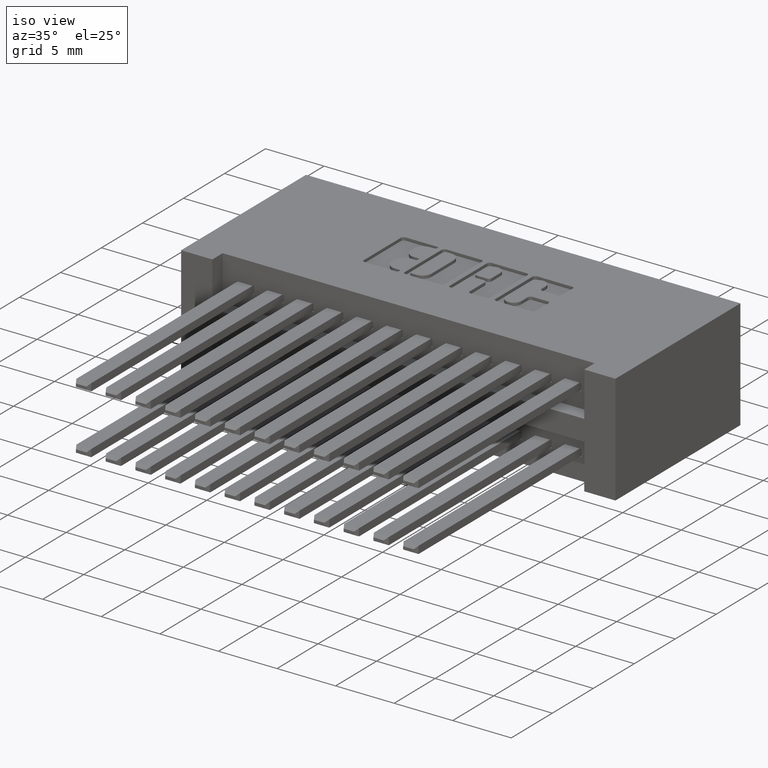
[diagram: clean part render]
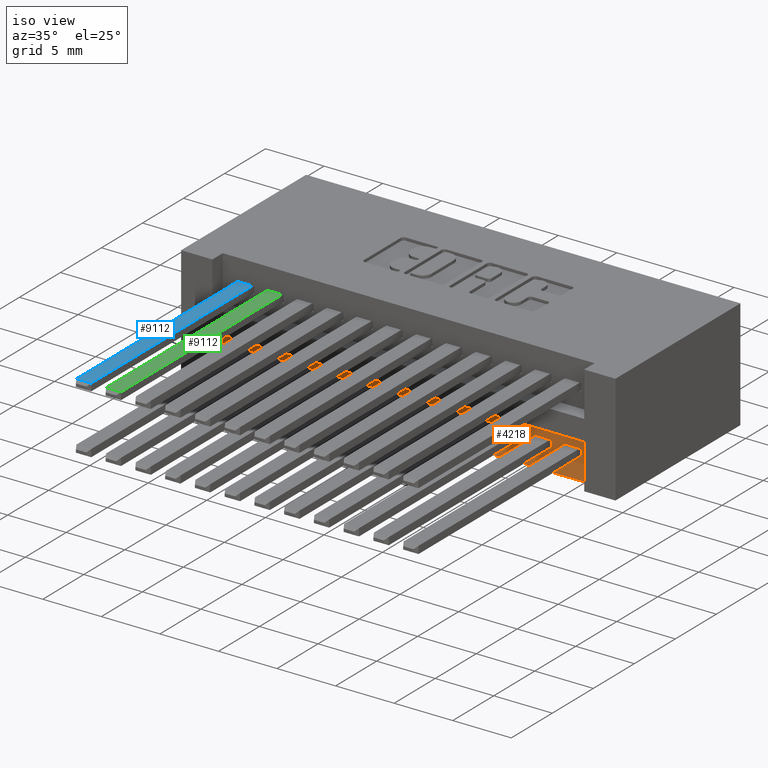
[diagram: same view with three faces highlighted in distinct colors, each labeled with its STEP entity id]
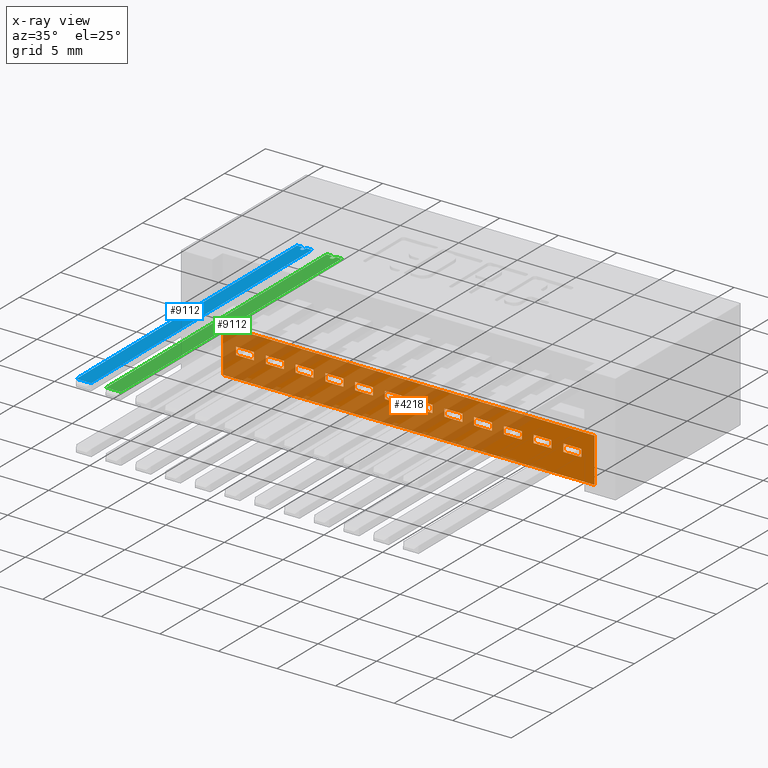
[diagram: x-ray of the same camera — body ghosted, the three highlighted faces saturated]
A machine part, iso view with three faces highlighted in distinct colors.
The next image is the same camera in x-ray (body ghosted, the three faces saturated) — at least one of them is partly hidden behind the body in this view.
Their STEP definitions:

[orange] entity #4218 — the highlighted planar face has unit normal (0, -1, 0).
#4 = CARTESIAN_POINT ( 'NONE',  ( 1.642500000000000100, 0.05000000000000000300, -0.2725000000000000800 ) ) ;
#54 = ORIENTED_EDGE ( 'NONE', *, *, #7841, .F. ) ;
#104 = CARTESIAN_POINT ( 'NONE',  ( 1.642500000000000100, 0.05000000000000000300, -0.2975000000000001000 ) ) ;
#114 = EDGE_CURVE ( 'NONE', #3669, #5964, #2914, .T. ) ;
#127 = EDGE_CURVE ( 'NONE', #2975, #10237, #7898, .T. ) ;
#145 = VERTEX_POINT ( 'NONE', #1014 ) ;
#149 = EDGE_CURVE ( 'NONE', #145, #8705, #12586, .T. ) ;
#174 = EDGE_LOOP ( 'NONE', ( #5662, #3736, #5647, #4494 ) ) ;
#185 = DIRECTION ( 'NONE',  ( 0.0000000000000000000, 0.0000000000000000000, 1.000000000000000000 ) ) ;
#258 = EDGE_CURVE ( 'NONE', #3155, #1721, #6879, .T. ) ;
#396 = FACE_BOUND ( 'NONE', #2425, .T. ) ;
#409 = CARTESIAN_POINT ( 'NONE',  ( 1.197499999999999800, 0.05000000000000000300, -0.3700000000000000000 ) ) ;
#428 = ORIENTED_EDGE ( 'NONE', *, *, #7124, .F. ) ;
#538 = VECTOR ( 'NONE', #903, 39.37007874015748100 ) ;
#553 = LINE ( 'NONE', #5601, #5839 ) ;
#554 = VECTOR ( 'NONE', #12556, 39.37007874015748100 ) ;
#582 = EDGE_CURVE ( 'NONE', #12632, #6381, #1122, .T. ) ;
#630 = CARTESIAN_POINT ( 'NONE',  ( 1.497500000000000100, 0.05000000000000000300, -0.2975000000000000400 ) ) ;
#659 = CARTESIAN_POINT ( 'NONE',  ( 0.4974999999999998900, 0.05000000000000001000, -0.2725000000000000800 ) ) ;
#689 = LINE ( 'NONE', #5370, #3128 ) ;
#695 = LINE ( 'NONE', #10396, #11220 ) ;
#697 = DIRECTION ( 'NONE',  ( 0.0000000000000000000, -1.000000000000000000, 0.0000000000000000000 ) ) ;
#720 = FACE_BOUND ( 'NONE', #8670, .T. ) ;
#772 = CARTESIAN_POINT ( 'NONE',  ( 1.642500000000000100, 0.05000000000000000300, -0.2725000000000000200 ) ) ;
#816 = ORIENTED_EDGE ( 'NONE', *, *, #1096, .F. ) ;
#837 = EDGE_CURVE ( 'NONE', #4501, #9165, #4519, .T. ) ;
#903 = DIRECTION ( 'NONE',  ( -1.000000000000000000, 0.0000000000000000000, 0.0000000000000000000 ) ) ;
#911 = CARTESIAN_POINT ( 'NONE',  ( 0.8974999999999999600, 0.05000000000000000300, -0.3700000000000000000 ) ) ;
#976 = ORIENTED_EDGE ( 'NONE', *, *, #837, .T. ) ;
#1014 = CARTESIAN_POINT ( 'NONE',  ( 1.097499999999999900, 0.05000000000000000300, -0.2975000000000001000 ) ) ;
#1052 = EDGE_CURVE ( 'NONE', #4531, #2218, #4685, .T. ) ;
#1058 = FACE_BOUND ( 'NONE', #12037, .T. ) ;
#1096 = EDGE_CURVE ( 'NONE', #8272, #3332, #7575, .T. ) ;
#1109 = DIRECTION ( 'NONE',  ( 1.000000000000000000, 0.0000000000000000000, 0.0000000000000000000 ) ) ;
#1122 = LINE ( 'NONE', #1596, #6399 ) ;
#1174 = CARTESIAN_POINT ( 'NONE',  ( 0.6374999999999998400, 0.05000000000000000300, -0.3700000000000000000 ) ) ;
#1225 = VECTOR ( 'NONE', #9758, 39.37007874015748100 ) ;
#1232 = PLANE ( 'NONE',  #9299 ) ;
#1238 = DIRECTION ( 'NONE',  ( 0.0000000000000000000, 0.0000000000000000000, 1.000000000000000000 ) ) ;
#1275 = DIRECTION ( 'NONE',  ( 0.0000000000000000000, -0.0000000000000000000, -1.000000000000000000 ) ) ;
#1284 = LINE ( 'NONE', #8912, #6551 ) ;
#1299 = VECTOR ( 'NONE', #4181, 39.37007874015748100 ) ;
#1352 = CARTESIAN_POINT ( 'NONE',  ( 1.642500000000000100, 0.05000000000000000300, -0.2725000000000000200 ) ) ;
#1356 = EDGE_CURVE ( 'NONE', #2689, #2218, #10303, .T. ) ;
#1408 = VERTEX_POINT ( 'NONE', #10833 ) ;
#1515 = CARTESIAN_POINT ( 'NONE',  ( 0.7974999999999998800, 0.05000000000000001000, -0.2725000000000000800 ) ) ;
#1570 = VECTOR ( 'NONE', #6675, 39.37007874015748100 ) ;
#1596 = CARTESIAN_POINT ( 'NONE',  ( 1.642500000000000100, 0.05000000000000000300, -0.2975000000000001000 ) ) ;
#1598 = ORIENTED_EDGE ( 'NONE', *, *, #6179, .F. ) ;
#1611 = CARTESIAN_POINT ( 'NONE',  ( 0.6974999999999999000, 0.05000000000000000300, -0.2975000000000001000 ) ) ;
#1620 = DIRECTION ( 'NONE',  ( 1.000000000000000000, 0.0000000000000000000, 0.0000000000000000000 ) ) ;
#1633 = ORIENTED_EDGE ( 'NONE', *, *, #12647, .T. ) ;
#1705 = EDGE_CURVE ( 'NONE', #3905, #6712, #7202, .T. ) ;
#1721 = VERTEX_POINT ( 'NONE', #630 ) ;
#1768 = LINE ( 'NONE', #3134, #4206 ) ;
#1833 = LINE ( 'NONE', #1352, #12239 ) ;
#1875 = CARTESIAN_POINT ( 'NONE',  ( 0.8374999999999999100, 0.05000000000000001000, -0.2725000000000000800 ) ) ;
#1878 = LINE ( 'NONE', #9825, #12281 ) ;
#1879 = VERTEX_POINT ( 'NONE', #9822 ) ;
#1886 = CARTESIAN_POINT ( 'NONE',  ( 1.537500000000000100, 0.05000000000000014800, -0.2975000000000000400 ) ) ;
#1916 = ORIENTED_EDGE ( 'NONE', *, *, #11694, .F. ) ;
#1918 = VECTOR ( 'NONE', #8253, 39.37007874015748100 ) ;
#1928 = CARTESIAN_POINT ( 'NONE',  ( 1.642500000000000100, 0.05000000000000000300, -0.2725000000000000200 ) ) ;
#2033 = LINE ( 'NONE', #8158, #12408 ) ;
#2042 = VECTOR ( 'NONE', #9485, 39.37007874015748100 ) ;
#2114 = CARTESIAN_POINT ( 'NONE',  ( 1.642500000000000100, 0.05000000000000000300, -0.2725000000000000200 ) ) ;
#2128 = ORIENTED_EDGE ( 'NONE', *, *, #149, .F. ) ;
#2159 = CARTESIAN_POINT ( 'NONE',  ( 1.642500000000000100, 0.05000000000000000300, -0.2975000000000001000 ) ) ;
#2168 = DIRECTION ( 'NONE',  ( 1.000000000000000000, 0.0000000000000000000, 0.0000000000000000000 ) ) ;
#2170 = EDGE_CURVE ( 'NONE', #1721, #3946, #7877, .T. ) ;
#2173 = VECTOR ( 'NONE', #10877, 39.37007874015748100 ) ;
#2184 = LINE ( 'NONE', #11059, #7490 ) ;
#2218 = VERTEX_POINT ( 'NONE', #12532 ) ;
#2288 = ORIENTED_EDGE ( 'NONE', *, *, #12094, .F. ) ;
#2337 = DIRECTION ( 'NONE',  ( -1.000000000000000000, -0.0000000000000000000, -0.0000000000000000000 ) ) ;
#2341 = LINE ( 'NONE', #6851, #10235 ) ;
#2363 = DIRECTION ( 'NONE',  ( 0.0000000000000000000, 0.0000000000000000000, 1.000000000000000000 ) ) ;
#2425 = EDGE_LOOP ( 'NONE', ( #1598, #3455, #2454, #5483 ) ) ;
#2427 = DIRECTION ( 'NONE',  ( 0.0000000000000000000, 0.0000000000000000000, 1.000000000000000000 ) ) ;
#2442 = CARTESIAN_POINT ( 'NONE',  ( 1.642500000000000100, 0.05000000000000000300, -0.2200000000000000000 ) ) ;
#2454 = ORIENTED_EDGE ( 'NONE', *, *, #3815, .F. ) ;
#2525 = LINE ( 'NONE', #6587, #7829 ) ;
#2591 = ORIENTED_EDGE ( 'NONE', *, *, #8138, .F. ) ;
#2594 = VECTOR ( 'NONE', #3037, 39.37007874015748100 ) ;
#2599 = ORIENTED_EDGE ( 'NONE', *, *, #4426, .T. ) ;
#2606 = EDGE_CURVE ( 'NONE', #10194, #3669, #6374, .T. ) ;
#2645 = CARTESIAN_POINT ( 'NONE',  ( 1.642500000000000100, 0.05000000000000000300, -0.2975000000000000400 ) ) ;
#2689 = VERTEX_POINT ( 'NONE', #7885 ) ;
#2698 = VECTOR ( 'NONE', #2427, 39.37007874015748100 ) ;
#2711 = EDGE_CURVE ( 'NONE', #6500, #7280, #12828, .T. ) ;
#2751 = CARTESIAN_POINT ( 'NONE',  ( 0.3924999999999996800, 0.05000000000000000300, -0.3700000000000000000 ) ) ;
#2786 = VECTOR ( 'NONE', #2337, 39.37007874015748100 ) ;
#2804 = EDGE_LOOP ( 'NONE', ( #4710, #5888, #9917, #3761 ) ) ;
#2824 = DIRECTION ( 'NONE',  ( 0.0000000000000000000, 0.0000000000000000000, 1.000000000000000000 ) ) ;
#2869 = CARTESIAN_POINT ( 'NONE',  ( 1.037499999999999900, 0.05000000000000014800, -0.2975000000000001000 ) ) ;
#2896 = CARTESIAN_POINT ( 'NONE',  ( 1.337500000000000100, 0.05000000000000001000, -0.2725000000000000200 ) ) ;
#2914 = LINE ( 'NONE', #8584, #2594 ) ;
#2959 = ORIENTED_EDGE ( 'NONE', *, *, #114, .T. ) ;
#2975 = VERTEX_POINT ( 'NONE', #7501 ) ;
#3007 = VECTOR ( 'NONE', #2168, 39.37007874015748100 ) ;
#3034 = EDGE_CURVE ( 'NONE', #5816, #1879, #5181, .T. ) ;
#3037 = DIRECTION ( 'NONE',  ( 0.0000000000000000000, 0.0000000000000000000, 1.000000000000000000 ) ) ;
#3051 = CARTESIAN_POINT ( 'NONE',  ( 1.237500000000000000, 0.05000000000000000300, -0.3700000000000000000 ) ) ;
#3103 = ORIENTED_EDGE ( 'NONE', *, *, #3034, .F. ) ;
#3123 = CARTESIAN_POINT ( 'NONE',  ( 1.642500000000000100, 0.05000000000000000300, -0.2975000000000001000 ) ) ;
#3128 = VECTOR ( 'NONE', #8537, 39.37007874015748100 ) ;
#3134 = CARTESIAN_POINT ( 'NONE',  ( 0.3924999999999996800, 0.05000000000000000300, -0.3700000000000000000 ) ) ;
#3151 = LINE ( 'NONE', #5394, #8455 ) ;
#3155 = VERTEX_POINT ( 'NONE', #12824 ) ;
#3159 = FACE_BOUND ( 'NONE', #10931, .T. ) ;
#3226 = ORIENTED_EDGE ( 'NONE', *, *, #3536, .F. ) ;
#3306 = ORIENTED_EDGE ( 'NONE', *, *, #2170, .F. ) ;
#3332 = VERTEX_POINT ( 'NONE', #8633 ) ;
#3364 = ORIENTED_EDGE ( 'NONE', *, *, #1705, .F. ) ;
#3391 = CARTESIAN_POINT ( 'NONE',  ( 1.297500000000000100, 0.05000000000000001000, -0.2725000000000000200 ) ) ;
#3397 = CARTESIAN_POINT ( 'NONE',  ( 0.9374999999999998900, 0.05000000000000014800, -0.2975000000000001000 ) ) ;
#3420 = VERTEX_POINT ( 'NONE', #7335 ) ;
#3444 = EDGE_LOOP ( 'NONE', ( #6115, #6768, #12361, #11266 ) ) ;
#3455 = ORIENTED_EDGE ( 'NONE', *, *, #11741, .T. ) ;
#3487 = FACE_BOUND ( 'NONE', #2804, .T. ) ;
#3528 = VECTOR ( 'NONE', #4566, 39.37007874015748100 ) ;
#3536 = EDGE_CURVE ( 'NONE', #7379, #6892, #8326, .T. ) ;
#3590 = EDGE_CURVE ( 'NONE', #3905, #3620, #2033, .T. ) ;
#3620 = VERTEX_POINT ( 'NONE', #9571 ) ;
#3669 = VERTEX_POINT ( 'NONE', #6936 ) ;
#3706 = EDGE_CURVE ( 'NONE', #12632, #8409, #11553, .T. ) ;
#3726 = CARTESIAN_POINT ( 'NONE',  ( 0.9974999999999999400, 0.05000000000000001000, -0.2725000000000000800 ) ) ;
#3736 = ORIENTED_EDGE ( 'NONE', *, *, #11291, .T. ) ;
#3746 = EDGE_CURVE ( 'NONE', #6381, #6136, #8762, .T. ) ;
#3761 = ORIENTED_EDGE ( 'NONE', *, *, #3746, .F. ) ;
#3815 = EDGE_CURVE ( 'NONE', #10676, #10326, #10399, .T. ) ;
#3819 = CARTESIAN_POINT ( 'NONE',  ( 1.642500000000000100, 0.05000000000000000300, -0.2725000000000000200 ) ) ;
#3872 = ORIENTED_EDGE ( 'NONE', *, *, #11104, .F. ) ;
#3905 = VERTEX_POINT ( 'NONE', #9611 ) ;
#3946 = VERTEX_POINT ( 'NONE', #5632 ) ;
#3949 = VECTOR ( 'NONE', #6749, 39.37007874015748100 ) ;
#4065 = DIRECTION ( 'NONE',  ( 1.000000000000000000, 0.0000000000000000000, 0.0000000000000000000 ) ) ;
#4120 = CARTESIAN_POINT ( 'NONE',  ( 0.8974999999999999600, 0.05000000000000000300, -0.2975000000000001000 ) ) ;
#4181 = DIRECTION ( 'NONE',  ( 1.000000000000000000, 0.0000000000000000000, 0.0000000000000000000 ) ) ;
#4206 = VECTOR ( 'NONE', #4455, 39.37007874015748100 ) ;
#4218 = ADVANCED_FACE ( 'NONE', ( #6660, #1058, #9359, #11544, #9033, #6340, #3487, #720, #11243, #8750, #5995, #3159, #396 ), #1232, .T. ) ;
#4227 = DIRECTION ( 'NONE',  ( 1.000000000000000000, 0.0000000000000000000, 0.0000000000000000000 ) ) ;
#4259 = DIRECTION ( 'NONE',  ( -1.000000000000000000, 0.0000000000000000000, 0.0000000000000000000 ) ) ;
#4262 = DIRECTION ( 'NONE',  ( 0.0000000000000000000, 0.0000000000000000000, 1.000000000000000000 ) ) ;
#4266 = EDGE_CURVE ( 'NONE', #10237, #6500, #2184, .T. ) ;
#4316 = LINE ( 'NONE', #10406, #9833 ) ;
#4319 = CARTESIAN_POINT ( 'NONE',  ( 0.9374999999999998900, 0.05000000000000001000, -0.2725000000000000800 ) ) ;
#4348 = CARTESIAN_POINT ( 'NONE',  ( 1.097499999999999900, 0.05000000000000000300, -0.3700000000000000000 ) ) ;
#4353 = VECTOR ( 'NONE', #5749, 39.37007874015748100 ) ;
#4390 = VERTEX_POINT ( 'NONE', #4964 ) ;
#4406 = CARTESIAN_POINT ( 'NONE',  ( 0.5374999999999999800, 0.05000000000000014800, -0.2975000000000001000 ) ) ;
#4418 = DIRECTION ( 'NONE',  ( 0.0000000000000000000, 0.0000000000000000000, 1.000000000000000000 ) ) ;
#4426 = EDGE_CURVE ( 'NONE', #7071, #8239, #553, .T. ) ;
#4455 = DIRECTION ( 'NONE',  ( -0.0000000000000000000, -0.0000000000000000000, -1.000000000000000000 ) ) ;
#4462 = VECTOR ( 'NONE', #5712, 39.37007874015748100 ) ;
#4494 = ORIENTED_EDGE ( 'NONE', *, *, #4266, .F. ) ;
#4496 = ORIENTED_EDGE ( 'NONE', *, *, #10558, .F. ) ;
#4501 = VERTEX_POINT ( 'NONE', #2869 ) ;
#4510 = EDGE_CURVE ( 'NONE', #9305, #3420, #2341, .T. ) ;
#4519 = LINE ( 'NONE', #5675, #11901 ) ;
#4531 = VERTEX_POINT ( 'NONE', #6506 ) ;
#4534 = CARTESIAN_POINT ( 'NONE',  ( 1.642500000000000100, 0.05000000000000000300, -0.2725000000000000800 ) ) ;
#4566 = DIRECTION ( 'NONE',  ( 1.000000000000000000, 0.0000000000000000000, 0.0000000000000000000 ) ) ;
#4568 = DIRECTION ( 'NONE',  ( 0.0000000000000000000, 0.0000000000000000000, 1.000000000000000000 ) ) ;
#4627 = VECTOR ( 'NONE', #4227, 39.37007874015748100 ) ;
#4685 = LINE ( 'NONE', #4, #1918 ) ;
#4710 = ORIENTED_EDGE ( 'NONE', *, *, #582, .F. ) ;
#4746 = VERTEX_POINT ( 'NONE', #11308 ) ;
#4753 = CARTESIAN_POINT ( 'NONE',  ( 0.3924999999999996800, 0.05000000000000000300, -0.2200000000000000000 ) ) ;
#4862 = VECTOR ( 'NONE', #12340, 39.37007874015748100 ) ;
#4884 = CARTESIAN_POINT ( 'NONE',  ( 1.237500000000000000, 0.05000000000000001000, -0.2725000000000000200 ) ) ;
#4896 = CARTESIAN_POINT ( 'NONE',  ( 1.642500000000000100, 0.05000000000000000300, -0.3700000000000000000 ) ) ;
#4932 = CARTESIAN_POINT ( 'NONE',  ( 0.7974999999999998800, 0.05000000000000000300, -0.3700000000000000000 ) ) ;
#4937 = CARTESIAN_POINT ( 'NONE',  ( 1.642500000000000100, 0.05000000000000000300, -0.2975000000000000400 ) ) ;
#4964 = CARTESIAN_POINT ( 'NONE',  ( 0.7374999999999998200, 0.05000000000000014800, -0.2975000000000001000 ) ) ;
#4990 = EDGE_CURVE ( 'NONE', #5964, #7001, #10910, .T. ) ;
#5010 = ORIENTED_EDGE ( 'NONE', *, *, #12501, .F. ) ;
#5046 = VECTOR ( 'NONE', #4065, 39.37007874015748100 ) ;
#5085 = EDGE_CURVE ( 'NONE', #11299, #3620, #11923, .T. ) ;
#5146 = CARTESIAN_POINT ( 'NONE',  ( 0.8974999999999999600, 0.05000000000000001000, -0.2725000000000000800 ) ) ;
#5181 = LINE ( 'NONE', #1928, #2042 ) ;
#5186 = DIRECTION ( 'NONE',  ( 0.0000000000000000000, 0.0000000000000000000, 1.000000000000000000 ) ) ;
#5187 = ORIENTED_EDGE ( 'NONE', *, *, #3590, .T. ) ;
#5259 = DIRECTION ( 'NONE',  ( -1.000000000000000000, 0.0000000000000000000, 0.0000000000000000000 ) ) ;
#5302 = CARTESIAN_POINT ( 'NONE',  ( 1.337500000000000100, 0.05000000000000014800, -0.2975000000000000400 ) ) ;
#5351 = CARTESIAN_POINT ( 'NONE',  ( 0.3924999999999996800, 0.05000000000000000300, -0.2200000000000000000 ) ) ;
#5370 = CARTESIAN_POINT ( 'NONE',  ( 1.642500000000000100, 0.05000000000000000300, -0.2725000000000000200 ) ) ;
#5394 = CARTESIAN_POINT ( 'NONE',  ( 0.6974999999999999000, 0.05000000000000000300, -0.3700000000000000000 ) ) ;
#5415 = VERTEX_POINT ( 'NONE', #1611 ) ;
#5433 = CARTESIAN_POINT ( 'NONE',  ( 0.9974999999999999400, 0.05000000000000000300, -0.3700000000000000000 ) ) ;
#5483 = ORIENTED_EDGE ( 'NONE', *, *, #10047, .F. ) ;
#5541 = VECTOR ( 'NONE', #6901, 39.37007874015748100 ) ;
#5601 = CARTESIAN_POINT ( 'NONE',  ( 0.5374999999999999800, 0.05000000000000000300, -0.3700000000000000000 ) ) ;
#5627 = CARTESIAN_POINT ( 'NONE',  ( 1.642500000000000100, 0.05000000000000000300, -0.2975000000000000400 ) ) ;
#5632 = CARTESIAN_POINT ( 'NONE',  ( 1.497500000000000100, 0.05000000000000001000, -0.2725000000000000200 ) ) ;
#5643 = VERTEX_POINT ( 'NONE', #10240 ) ;
#5647 = ORIENTED_EDGE ( 'NONE', *, *, #2711, .F. ) ;
#5662 = ORIENTED_EDGE ( 'NONE', *, *, #127, .F. ) ;
#5675 = CARTESIAN_POINT ( 'NONE',  ( 1.037499999999999900, 0.05000000000000000300, -0.3700000000000000000 ) ) ;
#5712 = DIRECTION ( 'NONE',  ( 0.0000000000000000000, 0.0000000000000000000, 1.000000000000000000 ) ) ;
#5714 = CARTESIAN_POINT ( 'NONE',  ( 1.642500000000000100, 0.05000000000000000300, -0.2725000000000000200 ) ) ;
#5724 = EDGE_CURVE ( 'NONE', #7001, #10194, #1768, .T. ) ;
#5749 = DIRECTION ( 'NONE',  ( 0.0000000000000000000, 0.0000000000000000000, 1.000000000000000000 ) ) ;
#5768 = VERTEX_POINT ( 'NONE', #2896 ) ;
#5816 = VERTEX_POINT ( 'NONE', #1515 ) ;
#5839 = VECTOR ( 'NONE', #7185, 39.37007874015748100 ) ;
#5888 = ORIENTED_EDGE ( 'NONE', *, *, #3706, .T. ) ;
#5907 = CARTESIAN_POINT ( 'NONE',  ( 0.8374999999999999100, 0.05000000000000014800, -0.2975000000000001000 ) ) ;
#5940 = CARTESIAN_POINT ( 'NONE',  ( 1.642500000000000100, 0.05000000000000000300, -0.2725000000000000200 ) ) ;
#5964 = VERTEX_POINT ( 'NONE', #2442 ) ;
#5995 = FACE_BOUND ( 'NONE', #6672, .T. ) ;
#6008 = VECTOR ( 'NONE', #6066, 39.37007874015748100 ) ;
#6045 = DIRECTION ( 'NONE',  ( 1.000000000000000000, 0.0000000000000000000, 0.0000000000000000000 ) ) ;
#6066 = DIRECTION ( 'NONE',  ( 0.0000000000000000000, 0.0000000000000000000, 1.000000000000000000 ) ) ;
#6115 = ORIENTED_EDGE ( 'NONE', *, *, #11572, .F. ) ;
#6136 = VERTEX_POINT ( 'NONE', #3726 ) ;
#6179 = EDGE_CURVE ( 'NONE', #12265, #11307, #10153, .T. ) ;
#6258 = VERTEX_POINT ( 'NONE', #1875 ) ;
#6270 = CARTESIAN_POINT ( 'NONE',  ( 1.597500000000000100, 0.05000000000000000300, -0.2975000000000000400 ) ) ;
#6339 = DIRECTION ( 'NONE',  ( 1.000000000000000000, 0.0000000000000000000, 0.0000000000000000000 ) ) ;
#6340 = FACE_BOUND ( 'NONE', #6943, .T. ) ;
#6374 = LINE ( 'NONE', #10879, #3528 ) ;
#6381 = VERTEX_POINT ( 'NONE', #12231 ) ;
#6397 = ORIENTED_EDGE ( 'NONE', *, *, #6750, .T. ) ;
#6399 = VECTOR ( 'NONE', #1109, 39.37007874015748100 ) ;
#6435 = DIRECTION ( 'NONE',  ( 0.0000000000000000000, 0.0000000000000000000, 1.000000000000000000 ) ) ;
#6499 = VECTOR ( 'NONE', #11876, 39.37007874015748100 ) ;
#6500 = VERTEX_POINT ( 'NONE', #3391 ) ;
#6506 = CARTESIAN_POINT ( 'NONE',  ( 0.6974999999999999000, 0.05000000000000001000, -0.2725000000000000800 ) ) ;
#6551 = VECTOR ( 'NONE', #9894, 39.37007874015748100 ) ;
#6587 = CARTESIAN_POINT ( 'NONE',  ( 1.642500000000000100, 0.05000000000000000300, -0.2975000000000001000 ) ) ;
#6660 = FACE_OUTER_BOUND ( 'NONE', #6923, .T. ) ;
#6672 = EDGE_LOOP ( 'NONE', ( #8111, #11707, #2591, #11824 ) ) ;
#6675 = DIRECTION ( 'NONE',  ( -1.000000000000000000, 0.0000000000000000000, 0.0000000000000000000 ) ) ;
#6707 = DIRECTION ( 'NONE',  ( 1.000000000000000000, 0.0000000000000000000, 0.0000000000000000000 ) ) ;
#6712 = VERTEX_POINT ( 'NONE', #8841 ) ;
#6718 = ORIENTED_EDGE ( 'NONE', *, *, #9593, .F. ) ;
#6749 = DIRECTION ( 'NONE',  ( -1.000000000000000000, 0.0000000000000000000, 0.0000000000000000000 ) ) ;
#6750 = EDGE_CURVE ( 'NONE', #11009, #6258, #1284, .T. ) ;
#6768 = ORIENTED_EDGE ( 'NONE', *, *, #1356, .T. ) ;
#6790 = VERTEX_POINT ( 'NONE', #659 ) ;
#6806 = LINE ( 'NONE', #5714, #3949 ) ;
#6810 = LINE ( 'NONE', #3819, #6499 ) ;
#6846 = CARTESIAN_POINT ( 'NONE',  ( 1.097499999999999900, 0.05000000000000001000, -0.2725000000000000800 ) ) ;
#6851 = CARTESIAN_POINT ( 'NONE',  ( 1.397500000000000000, 0.05000000000000000300, -0.3700000000000000000 ) ) ;
#6879 = LINE ( 'NONE', #4937, #1299 ) ;
#6892 = VERTEX_POINT ( 'NONE', #5146 ) ;
#6901 = DIRECTION ( 'NONE',  ( 1.000000000000000000, 0.0000000000000000000, 0.0000000000000000000 ) ) ;
#6923 = EDGE_LOOP ( 'NONE', ( #7578, #2959, #11578, #7083 ) ) ;
#6936 = CARTESIAN_POINT ( 'NONE',  ( 1.642500000000000100, 0.05000000000000000300, -0.3700000000000000000 ) ) ;
#6943 = EDGE_LOOP ( 'NONE', ( #11427, #6397, #2288, #3226 ) ) ;
#6953 = ORIENTED_EDGE ( 'NONE', *, *, #8178, .F. ) ;
#6977 = VERTEX_POINT ( 'NONE', #5302 ) ;
#7001 = VERTEX_POINT ( 'NONE', #5351 ) ;
#7071 = VERTEX_POINT ( 'NONE', #4406 ) ;
#7083 = ORIENTED_EDGE ( 'NONE', *, *, #5724, .T. ) ;
#7124 = EDGE_CURVE ( 'NONE', #6790, #5643, #12286, .T. ) ;
#7185 = DIRECTION ( 'NONE',  ( 0.0000000000000000000, 0.0000000000000000000, 1.000000000000000000 ) ) ;
#7195 = EDGE_CURVE ( 'NONE', #11009, #7379, #12975, .T. ) ;
#7202 = LINE ( 'NONE', #3123, #9573 ) ;
#7210 = CARTESIAN_POINT ( 'NONE',  ( 1.642500000000000100, 0.05000000000000000300, -0.2725000000000000800 ) ) ;
#7264 = EDGE_LOOP ( 'NONE', ( #3364, #5187, #12852, #1916 ) ) ;
#7280 = VERTEX_POINT ( 'NONE', #4884 ) ;
#7293 = VERTEX_POINT ( 'NONE', #9065 ) ;
#7315 = CARTESIAN_POINT ( 'NONE',  ( 1.642500000000000100, 0.05000000000000000300, -0.2975000000000000400 ) ) ;
#7335 = CARTESIAN_POINT ( 'NONE',  ( 1.397500000000000000, 0.05000000000000001000, -0.2725000000000000200 ) ) ;
#7342 = LINE ( 'NONE', #9756, #4462 ) ;
#7379 = VERTEX_POINT ( 'NONE', #4120 ) ;
#7430 = EDGE_CURVE ( 'NONE', #6977, #5768, #4316, .T. ) ;
#7462 = CARTESIAN_POINT ( 'NONE',  ( 1.642500000000000100, 0.05000000000000000300, -0.2725000000000000200 ) ) ;
#7490 = VECTOR ( 'NONE', #11767, 39.37007874015748100 ) ;
#7501 = CARTESIAN_POINT ( 'NONE',  ( 1.237500000000000000, 0.05000000000000014800, -0.2975000000000000400 ) ) ;
#7519 = LINE ( 'NONE', #2159, #4627 ) ;
#7524 = DIRECTION ( 'NONE',  ( 0.0000000000000000000, 0.0000000000000000000, 1.000000000000000000 ) ) ;
#7573 = VECTOR ( 'NONE', #5186, 39.37007874015748100 ) ;
#7575 = LINE ( 'NONE', #8323, #4353 ) ;
#7578 = ORIENTED_EDGE ( 'NONE', *, *, #2606, .T. ) ;
#7579 = EDGE_CURVE ( 'NONE', #3155, #4746, #7342, .T. ) ;
#7638 = CARTESIAN_POINT ( 'NONE',  ( 0.7974999999999998800, 0.05000000000000000300, -0.2975000000000001000 ) ) ;
#7651 = DIRECTION ( 'NONE',  ( 1.000000000000000000, 0.0000000000000000000, 0.0000000000000000000 ) ) ;
#7653 = VECTOR ( 'NONE', #1620, 39.37007874015748100 ) ;
#7817 = LINE ( 'NONE', #5940, #2173 ) ;
#7829 = VECTOR ( 'NONE', #7651, 39.37007874015748100 ) ;
#7841 = EDGE_CURVE ( 'NONE', #7293, #1408, #8620, .T. ) ;
#7842 = VECTOR ( 'NONE', #4259, 39.37007874015748100 ) ;
#7877 = LINE ( 'NONE', #11709, #8194 ) ;
#7885 = CARTESIAN_POINT ( 'NONE',  ( 0.6374999999999998400, 0.05000000000000014800, -0.2975000000000001000 ) ) ;
#7898 = LINE ( 'NONE', #7315, #5046 ) ;
#7909 = EDGE_LOOP ( 'NONE', ( #4496, #2599, #6718, #816 ) ) ;
#7937 = CARTESIAN_POINT ( 'NONE',  ( 1.037499999999999900, 0.05000000000000001000, -0.2725000000000000800 ) ) ;
#7941 = ORIENTED_EDGE ( 'NONE', *, *, #7579, .T. ) ;
#7962 = LINE ( 'NONE', #7210, #538 ) ;
#7983 = LINE ( 'NONE', #2645, #7653 ) ;
#8037 = EDGE_LOOP ( 'NONE', ( #6953, #9518, #3103, #3872 ) ) ;
#8111 = ORIENTED_EDGE ( 'NONE', *, *, #11837, .F. ) ;
#8138 = EDGE_CURVE ( 'NONE', #3420, #5768, #6810, .T. ) ;
#8158 = CARTESIAN_POINT ( 'NONE',  ( 1.137499999999999700, 0.05000000000000000300, -0.3700000000000000000 ) ) ;
#8178 = EDGE_CURVE ( 'NONE', #4390, #12627, #8884, .T. ) ;
#8182 = VECTOR ( 'NONE', #9459, 39.37007874015748100 ) ;
#8194 = VECTOR ( 'NONE', #2363, 39.37007874015748100 ) ;
#8198 = CARTESIAN_POINT ( 'NONE',  ( 0.9374999999999998900, 0.05000000000000000300, -0.3700000000000000000 ) ) ;
#8239 = VERTEX_POINT ( 'NONE', #8264 ) ;
#8253 = DIRECTION ( 'NONE',  ( -1.000000000000000000, 0.0000000000000000000, 0.0000000000000000000 ) ) ;
#8264 = CARTESIAN_POINT ( 'NONE',  ( 0.5374999999999999800, 0.05000000000000001000, -0.2725000000000000800 ) ) ;
#8272 = VERTEX_POINT ( 'NONE', #8303 ) ;
#8303 = CARTESIAN_POINT ( 'NONE',  ( 0.5974999999999998100, 0.05000000000000000300, -0.2975000000000001000 ) ) ;
#8304 = ORIENTED_EDGE ( 'NONE', *, *, #11718, .F. ) ;
#8323 = CARTESIAN_POINT ( 'NONE',  ( 0.5974999999999998100, 0.05000000000000000300, -0.3700000000000000000 ) ) ;
#8326 = LINE ( 'NONE', #911, #2698 ) ;
#8373 = EDGE_CURVE ( 'NONE', #5415, #4531, #3151, .T. ) ;
#8409 = VERTEX_POINT ( 'NONE', #4319 ) ;
#8433 = LINE ( 'NONE', #12277, #10928 ) ;
#8455 = VECTOR ( 'NONE', #7524, 39.37007874015748100 ) ;
#8503 = EDGE_CURVE ( 'NONE', #3946, #4746, #1833, .T. ) ;
#8537 = DIRECTION ( 'NONE',  ( -1.000000000000000000, 0.0000000000000000000, 0.0000000000000000000 ) ) ;
#8584 = CARTESIAN_POINT ( 'NONE',  ( 1.642500000000000100, 0.05000000000000000300, -0.3700000000000000000 ) ) ;
#8620 = LINE ( 'NONE', #104, #3007 ) ;
#8633 = CARTESIAN_POINT ( 'NONE',  ( 0.5974999999999999200, 0.05000000000000001000, -0.2725000000000000800 ) ) ;
#8634 = CARTESIAN_POINT ( 'NONE',  ( 1.642500000000000100, 0.05000000000000000300, -0.2975000000000001000 ) ) ;
#8670 = EDGE_LOOP ( 'NONE', ( #11456, #976, #8304, #2128 ) ) ;
#8705 = VERTEX_POINT ( 'NONE', #6846 ) ;
#8750 = FACE_BOUND ( 'NONE', #174, .T. ) ;
#8762 = LINE ( 'NONE', #5433, #6008 ) ;
#8841 = CARTESIAN_POINT ( 'NONE',  ( 1.197499999999999800, 0.05000000000000000300, -0.2975000000000001000 ) ) ;
#8881 = LINE ( 'NONE', #11659, #554 ) ;
#8884 = LINE ( 'NONE', #10980, #11100 ) ;
#8912 = CARTESIAN_POINT ( 'NONE',  ( 0.8374999999999999100, 0.05000000000000000300, -0.3700000000000000000 ) ) ;
#8970 = EDGE_CURVE ( 'NONE', #4501, #145, #10239, .T. ) ;
#9033 = FACE_BOUND ( 'NONE', #8037, .T. ) ;
#9046 = VECTOR ( 'NONE', #185, 39.37007874015748100 ) ;
#9065 = CARTESIAN_POINT ( 'NONE',  ( 0.4374999999999998900, 0.05000000000000014800, -0.2975000000000001000 ) ) ;
#9133 = ORIENTED_EDGE ( 'NONE', *, *, #258, .F. ) ;
#9165 = VERTEX_POINT ( 'NONE', #7937 ) ;
#9299 = AXIS2_PLACEMENT_3D ( 'NONE', #4896, #697, #1275 ) ;
#9305 = VERTEX_POINT ( 'NONE', #12987 ) ;
#9359 = FACE_BOUND ( 'NONE', #7909, .T. ) ;
#9380 = DIRECTION ( 'NONE',  ( 0.0000000000000000000, 0.0000000000000000000, 1.000000000000000000 ) ) ;
#9390 = ORIENTED_EDGE ( 'NONE', *, *, #8503, .F. ) ;
#9459 = DIRECTION ( 'NONE',  ( -1.000000000000000000, 0.0000000000000000000, 0.0000000000000000000 ) ) ;
#9485 = DIRECTION ( 'NONE',  ( -1.000000000000000000, 0.0000000000000000000, 0.0000000000000000000 ) ) ;
#9518 = ORIENTED_EDGE ( 'NONE', *, *, #9733, .T. ) ;
#9571 = CARTESIAN_POINT ( 'NONE',  ( 1.137499999999999700, 0.05000000000000001000, -0.2725000000000000800 ) ) ;
#9573 = VECTOR ( 'NONE', #6707, 39.37007874015748100 ) ;
#9593 = EDGE_CURVE ( 'NONE', #3332, #8239, #7962, .T. ) ;
#9611 = CARTESIAN_POINT ( 'NONE',  ( 1.137499999999999700, 0.05000000000000014800, -0.2975000000000001000 ) ) ;
#9646 = DIRECTION ( 'NONE',  ( -1.000000000000000000, 0.0000000000000000000, 0.0000000000000000000 ) ) ;
#9721 = EDGE_CURVE ( 'NONE', #6136, #8409, #689, .T. ) ;
#9733 = EDGE_CURVE ( 'NONE', #4390, #1879, #8433, .T. ) ;
#9756 = CARTESIAN_POINT ( 'NONE',  ( 1.437500000000000200, 0.05000000000000000300, -0.3700000000000000000 ) ) ;
#9758 = DIRECTION ( 'NONE',  ( 0.0000000000000000000, 0.0000000000000000000, 1.000000000000000000 ) ) ;
#9765 = VECTOR ( 'NONE', #5259, 39.37007874015748100 ) ;
#9785 = LINE ( 'NONE', #12397, #10068 ) ;
#9809 = LINE ( 'NONE', #409, #1225 ) ;
#9822 = CARTESIAN_POINT ( 'NONE',  ( 0.7374999999999998200, 0.05000000000000001000, -0.2725000000000000800 ) ) ;
#9825 = CARTESIAN_POINT ( 'NONE',  ( 1.597500000000000100, 0.05000000000000000300, -0.3700000000000000000 ) ) ;
#9833 = VECTOR ( 'NONE', #4262, 39.37007874015748100 ) ;
#9894 = DIRECTION ( 'NONE',  ( 0.0000000000000000000, 0.0000000000000000000, 1.000000000000000000 ) ) ;
#9917 = ORIENTED_EDGE ( 'NONE', *, *, #9721, .F. ) ;
#10047 = EDGE_CURVE ( 'NONE', #11307, #10676, #1878, .T. ) ;
#10068 = VECTOR ( 'NONE', #4418, 39.37007874015748100 ) ;
#10153 = LINE ( 'NONE', #5627, #12583 ) ;
#10194 = VERTEX_POINT ( 'NONE', #2751 ) ;
#10235 = VECTOR ( 'NONE', #10846, 39.37007874015748100 ) ;
#10237 = VERTEX_POINT ( 'NONE', #10944 ) ;
#10239 = LINE ( 'NONE', #8634, #12395 ) ;
#10240 = CARTESIAN_POINT ( 'NONE',  ( 0.4374999999999998900, 0.05000000000000001000, -0.2725000000000000800 ) ) ;
#10303 = LINE ( 'NONE', #1174, #4862 ) ;
#10326 = VERTEX_POINT ( 'NONE', #12840 ) ;
#10396 = CARTESIAN_POINT ( 'NONE',  ( 0.4974999999999998300, 0.05000000000000000300, -0.3700000000000000000 ) ) ;
#10399 = LINE ( 'NONE', #772, #7842 ) ;
#10406 = CARTESIAN_POINT ( 'NONE',  ( 1.337500000000000100, 0.05000000000000000300, -0.3700000000000000000 ) ) ;
#10498 = CARTESIAN_POINT ( 'NONE',  ( 1.597500000000000100, 0.05000000000000001000, -0.2725000000000000200 ) ) ;
#10533 = VECTOR ( 'NONE', #12093, 39.37007874015748100 ) ;
#10558 = EDGE_CURVE ( 'NONE', #7071, #8272, #7519, .T. ) ;
#10676 = VERTEX_POINT ( 'NONE', #10498 ) ;
#10833 = CARTESIAN_POINT ( 'NONE',  ( 0.4974999999999998300, 0.05000000000000000300, -0.2975000000000001000 ) ) ;
#10846 = DIRECTION ( 'NONE',  ( 0.0000000000000000000, 0.0000000000000000000, 1.000000000000000000 ) ) ;
#10877 = DIRECTION ( 'NONE',  ( -1.000000000000000000, 0.0000000000000000000, 0.0000000000000000000 ) ) ;
#10879 = CARTESIAN_POINT ( 'NONE',  ( 0.3924999999999996800, 0.05000000000000000300, -0.3700000000000000000 ) ) ;
#10910 = LINE ( 'NONE', #4753, #2786 ) ;
#10928 = VECTOR ( 'NONE', #1238, 39.37007874015748100 ) ;
#10931 = EDGE_LOOP ( 'NONE', ( #9133, #7941, #9390, #3306 ) ) ;
#10944 = CARTESIAN_POINT ( 'NONE',  ( 1.297500000000000100, 0.05000000000000000300, -0.2975000000000000400 ) ) ;
#10980 = CARTESIAN_POINT ( 'NONE',  ( 1.642500000000000100, 0.05000000000000000300, -0.2975000000000001000 ) ) ;
#11009 = VERTEX_POINT ( 'NONE', #5907 ) ;
#11059 = CARTESIAN_POINT ( 'NONE',  ( 1.297500000000000100, 0.05000000000000000300, -0.3700000000000000000 ) ) ;
#11100 = VECTOR ( 'NONE', #6045, 39.37007874015748100 ) ;
#11104 = EDGE_CURVE ( 'NONE', #12627, #5816, #12539, .T. ) ;
#11220 = VECTOR ( 'NONE', #6435, 39.37007874015748100 ) ;
#11243 = FACE_BOUND ( 'NONE', #7264, .T. ) ;
#11266 = ORIENTED_EDGE ( 'NONE', *, *, #8373, .F. ) ;
#11291 = EDGE_CURVE ( 'NONE', #2975, #7280, #12953, .T. ) ;
#11299 = VERTEX_POINT ( 'NONE', #12989 ) ;
#11307 = VERTEX_POINT ( 'NONE', #6270 ) ;
#11308 = CARTESIAN_POINT ( 'NONE',  ( 1.437500000000000200, 0.05000000000000001000, -0.2725000000000000200 ) ) ;
#11427 = ORIENTED_EDGE ( 'NONE', *, *, #7195, .F. ) ;
#11456 = ORIENTED_EDGE ( 'NONE', *, *, #8970, .F. ) ;
#11544 = FACE_BOUND ( 'NONE', #3444, .T. ) ;
#11553 = LINE ( 'NONE', #8198, #9046 ) ;
#11572 = EDGE_CURVE ( 'NONE', #2689, #5415, #2525, .T. ) ;
#11578 = ORIENTED_EDGE ( 'NONE', *, *, #4990, .T. ) ;
#11659 = CARTESIAN_POINT ( 'NONE',  ( 1.537500000000000100, 0.05000000000000000300, -0.3700000000000000000 ) ) ;
#11687 = DIRECTION ( 'NONE',  ( 0.0000000000000000000, 0.0000000000000000000, 1.000000000000000000 ) ) ;
#11694 = EDGE_CURVE ( 'NONE', #6712, #11299, #9809, .T. ) ;
#11707 = ORIENTED_EDGE ( 'NONE', *, *, #7430, .T. ) ;
#11709 = CARTESIAN_POINT ( 'NONE',  ( 1.497500000000000100, 0.05000000000000000300, -0.3700000000000000000 ) ) ;
#11718 = EDGE_CURVE ( 'NONE', #8705, #9165, #6806, .T. ) ;
#11741 = EDGE_CURVE ( 'NONE', #12265, #10326, #8881, .T. ) ;
#11767 = DIRECTION ( 'NONE',  ( 0.0000000000000000000, 0.0000000000000000000, 1.000000000000000000 ) ) ;
#11824 = ORIENTED_EDGE ( 'NONE', *, *, #4510, .F. ) ;
#11837 = EDGE_CURVE ( 'NONE', #6977, #9305, #7983, .T. ) ;
#11876 = DIRECTION ( 'NONE',  ( -1.000000000000000000, 0.0000000000000000000, 0.0000000000000000000 ) ) ;
#11901 = VECTOR ( 'NONE', #4568, 39.37007874015748100 ) ;
#11923 = LINE ( 'NONE', #2114, #9765 ) ;
#12037 = EDGE_LOOP ( 'NONE', ( #54, #1633, #428, #5010 ) ) ;
#12093 = DIRECTION ( 'NONE',  ( 0.0000000000000000000, 0.0000000000000000000, 1.000000000000000000 ) ) ;
#12094 = EDGE_CURVE ( 'NONE', #6892, #6258, #7817, .T. ) ;
#12231 = CARTESIAN_POINT ( 'NONE',  ( 0.9974999999999999400, 0.05000000000000000300, -0.2975000000000001000 ) ) ;
#12239 = VECTOR ( 'NONE', #9646, 39.37007874015748100 ) ;
#12258 = VECTOR ( 'NONE', #2824, 39.37007874015748100 ) ;
#12265 = VERTEX_POINT ( 'NONE', #1886 ) ;
#12277 = CARTESIAN_POINT ( 'NONE',  ( 0.7374999999999998200, 0.05000000000000000300, -0.3700000000000000000 ) ) ;
#12281 = VECTOR ( 'NONE', #11687, 39.37007874015748100 ) ;
#12286 = LINE ( 'NONE', #4534, #1570 ) ;
#12340 = DIRECTION ( 'NONE',  ( 0.0000000000000000000, 0.0000000000000000000, 1.000000000000000000 ) ) ;
#12361 = ORIENTED_EDGE ( 'NONE', *, *, #1052, .F. ) ;
#12382 = DIRECTION ( 'NONE',  ( 1.000000000000000000, 0.0000000000000000000, 0.0000000000000000000 ) ) ;
#12395 = VECTOR ( 'NONE', #12382, 39.37007874015748100 ) ;
#12397 = CARTESIAN_POINT ( 'NONE',  ( 0.4374999999999998900, 0.05000000000000000300, -0.3700000000000000000 ) ) ;
#12408 = VECTOR ( 'NONE', #9380, 39.37007874015748100 ) ;
#12501 = EDGE_CURVE ( 'NONE', #1408, #6790, #695, .T. ) ;
#12532 = CARTESIAN_POINT ( 'NONE',  ( 0.6374999999999998400, 0.05000000000000001000, -0.2725000000000000800 ) ) ;
#12539 = LINE ( 'NONE', #4932, #12258 ) ;
#12556 = DIRECTION ( 'NONE',  ( 0.0000000000000000000, 0.0000000000000000000, 1.000000000000000000 ) ) ;
#12583 = VECTOR ( 'NONE', #6339, 39.37007874015748100 ) ;
#12586 = LINE ( 'NONE', #4348, #7573 ) ;
#12627 = VERTEX_POINT ( 'NONE', #7638 ) ;
#12632 = VERTEX_POINT ( 'NONE', #3397 ) ;
#12639 = CARTESIAN_POINT ( 'NONE',  ( 1.642500000000000100, 0.05000000000000000300, -0.2975000000000001000 ) ) ;
#12647 = EDGE_CURVE ( 'NONE', #7293, #5643, #9785, .T. ) ;
#12824 = CARTESIAN_POINT ( 'NONE',  ( 1.437500000000000200, 0.05000000000000014800, -0.2975000000000000400 ) ) ;
#12828 = LINE ( 'NONE', #7462, #8182 ) ;
#12840 = CARTESIAN_POINT ( 'NONE',  ( 1.537500000000000100, 0.05000000000000001000, -0.2725000000000000200 ) ) ;
#12852 = ORIENTED_EDGE ( 'NONE', *, *, #5085, .F. ) ;
#12953 = LINE ( 'NONE', #3051, #10533 ) ;
#12975 = LINE ( 'NONE', #12639, #5541 ) ;
#12987 = CARTESIAN_POINT ( 'NONE',  ( 1.397500000000000000, 0.05000000000000000300, -0.2975000000000000400 ) ) ;
#12989 = CARTESIAN_POINT ( 'NONE',  ( 1.197499999999999800, 0.05000000000000001000, -0.2725000000000000800 ) ) ;

[blue] entity #9112 — the highlighted planar face has unit normal (0, -0, 1).
#175 = VERTEX_POINT ( 'NONE', #638 ) ;
#190 = DIRECTION ( 'NONE',  ( 9.307903442004391300E-013, 1.000000000000000000, 7.650304456533074300E-013 ) ) ;
#357 = CARTESIAN_POINT ( 'NONE',  ( 0.3462132034343769500, 0.01250000000060807900, 0.006000000001239593600 ) ) ;
#437 = DIRECTION ( 'NONE',  ( 1.000000000000000000, 9.312128644368854700E-013, -3.616043586819488500E-013 ) ) ;
#638 = CARTESIAN_POINT ( 'NONE',  ( 1.395213203430470900, 0.01250000000126860600, -0.02500000000560179800 ) ) ;
#1067 = LINE ( 'NONE', #12493, #6349 ) ;
#1477 = DIRECTION ( 'NONE',  ( 3.616043586754647900E-013, -7.650304456541799400E-013, -1.000000000000000000 ) ) ;
#1478 = CARTESIAN_POINT ( 'NONE',  ( 0.3361881571550303100, 0.01250000000022674600, -0.02500000000411184800 ) ) ;
#1652 = VERTEX_POINT ( 'NONE', #4417 ) ;
#1653 = DIRECTION ( 'NONE',  ( 9.307903442004391300E-013, 1.000000000000000000, 7.650304456533074300E-013 ) ) ;
#2429 = VECTOR ( 'NONE', #3042, 39.37007874015748100 ) ;
#2527 = DIRECTION ( 'NONE',  ( 1.000000000000000000, 9.312128644368854700E-013, -3.616043586819488500E-013 ) ) ;
#2633 = AXIS2_PLACEMENT_3D ( 'NONE', #6516, #190, #7584 ) ;
#2806 = ORIENTED_EDGE ( 'NONE', *, *, #4256, .T. ) ;
#2965 = ORIENTED_EDGE ( 'NONE', *, *, #9864, .T. ) ;
#3009 = ORIENTED_EDGE ( 'NONE', *, *, #12052, .T. ) ;
#3042 = DIRECTION ( 'NONE',  ( 1.000000000000000000, 9.312128644368854700E-013, -3.616043586819488500E-013 ) ) ;
#3069 = ORIENTED_EDGE ( 'NONE', *, *, #8606, .T. ) ;
#3074 = CARTESIAN_POINT ( 'NONE',  ( 0.3361881571553441700, 0.01250000000019423800, 0.005999999997565258500 ) ) ;
#3082 = ORIENTED_EDGE ( 'NONE', *, *, #11180, .T. ) ;
#3085 = ORIENTED_EDGE ( 'NONE', *, *, #12760, .T. ) ;
#3238 = ORIENTED_EDGE ( 'NONE', *, *, #10639, .T. ) ;
#3240 = ORIENTED_EDGE ( 'NONE', *, *, #6044, .T. ) ;
#3702 = ORIENTED_EDGE ( 'NONE', *, *, #4170, .F. ) ;
#3962 = LINE ( 'NONE', #5027, #6815 ) ;
#4122 = LINE ( 'NONE', #9366, #11830 ) ;
#4170 = EDGE_CURVE ( 'NONE', #5033, #4367, #4122, .T. ) ;
#4256 = EDGE_CURVE ( 'NONE', #5033, #1652, #12528, .T. ) ;
#4367 = VERTEX_POINT ( 'NONE', #5075 ) ;
#4417 = CARTESIAN_POINT ( 'NONE',  ( 0.3361881571553441700, 0.01250000000019423800, 0.005999999997565258500 ) ) ;
#4533 = PLANE ( 'NONE',  #10587 ) ;
#4870 = VERTEX_POINT ( 'NONE', #11861 ) ;
#4971 = VECTOR ( 'NONE', #8360, 39.37007874015748100 ) ;
#5027 = CARTESIAN_POINT ( 'NONE',  ( 0.3361881571552021700, 0.01250000000047022200, -0.006000000003266624900 ) ) ;
#5033 = VERTEX_POINT ( 'NONE', #7639 ) ;
#5075 = CARTESIAN_POINT ( 'NONE',  ( 1.395213203435901700, 0.01250000000153759000, 0.02499999999624030100 ) ) ;
#5320 = VECTOR ( 'NONE', #6110, 39.37007874015748100 ) ;
#5558 = DIRECTION ( 'NONE',  ( 1.000000000000000000, 9.312128644368854700E-013, -3.616043586819488500E-013 ) ) ;
#6044 = EDGE_CURVE ( 'NONE', #1652, #9447, #7399, .T. ) ;
#6110 = DIRECTION ( 'NONE',  ( -3.616043586754647900E-013, 7.650304456541799400E-013, 1.000000000000000000 ) ) ;
#6127 = DIRECTION ( 'NONE',  ( -1.000000000000000000, -9.312128644357838500E-013, 3.617324140566691900E-013 ) ) ;
#6334 = FACE_OUTER_BOUND ( 'NONE', #6549, .T. ) ;
#6349 = VECTOR ( 'NONE', #1477, 39.37007874015748100 ) ;
#6516 = CARTESIAN_POINT ( 'NONE',  ( 0.3462132034342595400, 0.01250000000074849600, 1.239712619524842700E-012 ) ) ;
#6549 = EDGE_LOOP ( 'NONE', ( #2806, #3240, #3085, #3238, #3082, #3069, #2965, #3009, #3702 ) ) ;
#6815 = VECTOR ( 'NONE', #6127, 39.37007874015748100 ) ;
#6984 = CARTESIAN_POINT ( 'NONE',  ( 0.3522132034342596600, 0.01250000000074291000, -7.069977099312522100E-013 ) ) ;
#7105 = VECTOR ( 'NONE', #5558, 39.37007874015748100 ) ;
#7399 = LINE ( 'NONE', #3074, #2429 ) ;
#7584 = DIRECTION ( 'NONE',  ( 1.000000000000000000, 9.312471415902264300E-013, -3.616043586819673800E-013 ) ) ;
#7639 = CARTESIAN_POINT ( 'NONE',  ( 0.3361881571553869700, 0.01250000000046158300, 0.02499999999767670700 ) ) ;
#8003 = CARTESIAN_POINT ( 'NONE',  ( 0.3462132034342595400, 0.01250000000074849600, 1.239712619524842700E-012 ) ) ;
#8141 = LINE ( 'NONE', #9142, #5320 ) ;
#8360 = DIRECTION ( 'NONE',  ( 3.616043586754647900E-013, -7.650304456541799400E-013, -1.000000000000000000 ) ) ;
#8380 = CARTESIAN_POINT ( 'NONE',  ( 0.3361881571550303100, 0.01250000000022674600, -0.02500000000411184800 ) ) ;
#8606 = EDGE_CURVE ( 'NONE', #8894, #4870, #1067, .T. ) ;
#8792 = DIRECTION ( 'NONE',  ( 9.312128644366088000E-013, -1.000000000000000000, -7.650304456539807200E-013 ) ) ;
#8840 = VERTEX_POINT ( 'NONE', #6984 ) ;
#8862 = CIRCLE ( 'NONE', #11842, 0.006000000000000086000 ) ;
#8894 = VERTEX_POINT ( 'NONE', #11384 ) ;
#8963 = DIRECTION ( 'NONE',  ( 1.000000000000000000, 9.312471415902264300E-013, -3.616043586819673800E-013 ) ) ;
#9112 = ADVANCED_FACE ( 'NONE', ( #6334 ), #4533, .T. ) ;
#9142 = CARTESIAN_POINT ( 'NONE',  ( 1.395213203430470900, 0.01250000000126860600, -0.02500000000560179800 ) ) ;
#9243 = VERTEX_POINT ( 'NONE', #12825 ) ;
#9366 = CARTESIAN_POINT ( 'NONE',  ( 0.3361881571553869700, 0.01250000000046158300, 0.02499999999767670700 ) ) ;
#9447 = VERTEX_POINT ( 'NONE', #357 ) ;
#9541 = CIRCLE ( 'NONE', #2633, 0.006000000000000086000 ) ;
#9864 = EDGE_CURVE ( 'NONE', #4870, #175, #12220, .T. ) ;
#10587 = AXIS2_PLACEMENT_3D ( 'NONE', #1478, #8792, #2527 ) ;
#10639 = EDGE_CURVE ( 'NONE', #8840, #9243, #9541, .T. ) ;
#11180 = EDGE_CURVE ( 'NONE', #9243, #8894, #3962, .T. ) ;
#11384 = CARTESIAN_POINT ( 'NONE',  ( 0.3361881571552021700, 0.01250000000047022200, -0.006000000003266624900 ) ) ;
#11482 = CARTESIAN_POINT ( 'NONE',  ( 0.3361881571550303100, 0.01250000000022674600, -0.02500000000411184800 ) ) ;
#11830 = VECTOR ( 'NONE', #437, 39.37007874015748100 ) ;
#11842 = AXIS2_PLACEMENT_3D ( 'NONE', #8003, #1653, #8963 ) ;
#11861 = CARTESIAN_POINT ( 'NONE',  ( 0.3361881571550303100, 0.01250000000022674600, -0.02500000000411184800 ) ) ;
#12052 = EDGE_CURVE ( 'NONE', #175, #4367, #8141, .T. ) ;
#12220 = LINE ( 'NONE', #11482, #7105 ) ;
#12493 = CARTESIAN_POINT ( 'NONE',  ( 0.3361881571550303100, 0.01250000000022674600, -0.02500000000411184800 ) ) ;
#12528 = LINE ( 'NONE', #8380, #4971 ) ;
#12760 = EDGE_CURVE ( 'NONE', #9447, #8840, #8862, .T. ) ;
#12825 = CARTESIAN_POINT ( 'NONE',  ( 0.3462132034342349500, 0.01250000000035005600, -0.005999999998762353900 ) ) ;

[green] entity #9112 — the highlighted planar face has unit normal (0, -0, 1).
#175 = VERTEX_POINT ( 'NONE', #638 ) ;
#190 = DIRECTION ( 'NONE',  ( 9.307903442004391300E-013, 1.000000000000000000, 7.650304456533074300E-013 ) ) ;
#357 = CARTESIAN_POINT ( 'NONE',  ( 0.3462132034343769500, 0.01250000000060807900, 0.006000000001239593600 ) ) ;
#437 = DIRECTION ( 'NONE',  ( 1.000000000000000000, 9.312128644368854700E-013, -3.616043586819488500E-013 ) ) ;
#638 = CARTESIAN_POINT ( 'NONE',  ( 1.395213203430470900, 0.01250000000126860600, -0.02500000000560179800 ) ) ;
#1067 = LINE ( 'NONE', #12493, #6349 ) ;
#1477 = DIRECTION ( 'NONE',  ( 3.616043586754647900E-013, -7.650304456541799400E-013, -1.000000000000000000 ) ) ;
#1478 = CARTESIAN_POINT ( 'NONE',  ( 0.3361881571550303100, 0.01250000000022674600, -0.02500000000411184800 ) ) ;
#1652 = VERTEX_POINT ( 'NONE', #4417 ) ;
#1653 = DIRECTION ( 'NONE',  ( 9.307903442004391300E-013, 1.000000000000000000, 7.650304456533074300E-013 ) ) ;
#2429 = VECTOR ( 'NONE', #3042, 39.37007874015748100 ) ;
#2527 = DIRECTION ( 'NONE',  ( 1.000000000000000000, 9.312128644368854700E-013, -3.616043586819488500E-013 ) ) ;
#2633 = AXIS2_PLACEMENT_3D ( 'NONE', #6516, #190, #7584 ) ;
#2806 = ORIENTED_EDGE ( 'NONE', *, *, #4256, .T. ) ;
#2965 = ORIENTED_EDGE ( 'NONE', *, *, #9864, .T. ) ;
#3009 = ORIENTED_EDGE ( 'NONE', *, *, #12052, .T. ) ;
#3042 = DIRECTION ( 'NONE',  ( 1.000000000000000000, 9.312128644368854700E-013, -3.616043586819488500E-013 ) ) ;
#3069 = ORIENTED_EDGE ( 'NONE', *, *, #8606, .T. ) ;
#3074 = CARTESIAN_POINT ( 'NONE',  ( 0.3361881571553441700, 0.01250000000019423800, 0.005999999997565258500 ) ) ;
#3082 = ORIENTED_EDGE ( 'NONE', *, *, #11180, .T. ) ;
#3085 = ORIENTED_EDGE ( 'NONE', *, *, #12760, .T. ) ;
#3238 = ORIENTED_EDGE ( 'NONE', *, *, #10639, .T. ) ;
#3240 = ORIENTED_EDGE ( 'NONE', *, *, #6044, .T. ) ;
#3702 = ORIENTED_EDGE ( 'NONE', *, *, #4170, .F. ) ;
#3962 = LINE ( 'NONE', #5027, #6815 ) ;
#4122 = LINE ( 'NONE', #9366, #11830 ) ;
#4170 = EDGE_CURVE ( 'NONE', #5033, #4367, #4122, .T. ) ;
#4256 = EDGE_CURVE ( 'NONE', #5033, #1652, #12528, .T. ) ;
#4367 = VERTEX_POINT ( 'NONE', #5075 ) ;
#4417 = CARTESIAN_POINT ( 'NONE',  ( 0.3361881571553441700, 0.01250000000019423800, 0.005999999997565258500 ) ) ;
#4533 = PLANE ( 'NONE',  #10587 ) ;
#4870 = VERTEX_POINT ( 'NONE', #11861 ) ;
#4971 = VECTOR ( 'NONE', #8360, 39.37007874015748100 ) ;
#5027 = CARTESIAN_POINT ( 'NONE',  ( 0.3361881571552021700, 0.01250000000047022200, -0.006000000003266624900 ) ) ;
#5033 = VERTEX_POINT ( 'NONE', #7639 ) ;
#5075 = CARTESIAN_POINT ( 'NONE',  ( 1.395213203435901700, 0.01250000000153759000, 0.02499999999624030100 ) ) ;
#5320 = VECTOR ( 'NONE', #6110, 39.37007874015748100 ) ;
#5558 = DIRECTION ( 'NONE',  ( 1.000000000000000000, 9.312128644368854700E-013, -3.616043586819488500E-013 ) ) ;
#6044 = EDGE_CURVE ( 'NONE', #1652, #9447, #7399, .T. ) ;
#6110 = DIRECTION ( 'NONE',  ( -3.616043586754647900E-013, 7.650304456541799400E-013, 1.000000000000000000 ) ) ;
#6127 = DIRECTION ( 'NONE',  ( -1.000000000000000000, -9.312128644357838500E-013, 3.617324140566691900E-013 ) ) ;
#6334 = FACE_OUTER_BOUND ( 'NONE', #6549, .T. ) ;
#6349 = VECTOR ( 'NONE', #1477, 39.37007874015748100 ) ;
#6516 = CARTESIAN_POINT ( 'NONE',  ( 0.3462132034342595400, 0.01250000000074849600, 1.239712619524842700E-012 ) ) ;
#6549 = EDGE_LOOP ( 'NONE', ( #2806, #3240, #3085, #3238, #3082, #3069, #2965, #3009, #3702 ) ) ;
#6815 = VECTOR ( 'NONE', #6127, 39.37007874015748100 ) ;
#6984 = CARTESIAN_POINT ( 'NONE',  ( 0.3522132034342596600, 0.01250000000074291000, -7.069977099312522100E-013 ) ) ;
#7105 = VECTOR ( 'NONE', #5558, 39.37007874015748100 ) ;
#7399 = LINE ( 'NONE', #3074, #2429 ) ;
#7584 = DIRECTION ( 'NONE',  ( 1.000000000000000000, 9.312471415902264300E-013, -3.616043586819673800E-013 ) ) ;
#7639 = CARTESIAN_POINT ( 'NONE',  ( 0.3361881571553869700, 0.01250000000046158300, 0.02499999999767670700 ) ) ;
#8003 = CARTESIAN_POINT ( 'NONE',  ( 0.3462132034342595400, 0.01250000000074849600, 1.239712619524842700E-012 ) ) ;
#8141 = LINE ( 'NONE', #9142, #5320 ) ;
#8360 = DIRECTION ( 'NONE',  ( 3.616043586754647900E-013, -7.650304456541799400E-013, -1.000000000000000000 ) ) ;
#8380 = CARTESIAN_POINT ( 'NONE',  ( 0.3361881571550303100, 0.01250000000022674600, -0.02500000000411184800 ) ) ;
#8606 = EDGE_CURVE ( 'NONE', #8894, #4870, #1067, .T. ) ;
#8792 = DIRECTION ( 'NONE',  ( 9.312128644366088000E-013, -1.000000000000000000, -7.650304456539807200E-013 ) ) ;
#8840 = VERTEX_POINT ( 'NONE', #6984 ) ;
#8862 = CIRCLE ( 'NONE', #11842, 0.006000000000000086000 ) ;
#8894 = VERTEX_POINT ( 'NONE', #11384 ) ;
#8963 = DIRECTION ( 'NONE',  ( 1.000000000000000000, 9.312471415902264300E-013, -3.616043586819673800E-013 ) ) ;
#9112 = ADVANCED_FACE ( 'NONE', ( #6334 ), #4533, .T. ) ;
#9142 = CARTESIAN_POINT ( 'NONE',  ( 1.395213203430470900, 0.01250000000126860600, -0.02500000000560179800 ) ) ;
#9243 = VERTEX_POINT ( 'NONE', #12825 ) ;
#9366 = CARTESIAN_POINT ( 'NONE',  ( 0.3361881571553869700, 0.01250000000046158300, 0.02499999999767670700 ) ) ;
#9447 = VERTEX_POINT ( 'NONE', #357 ) ;
#9541 = CIRCLE ( 'NONE', #2633, 0.006000000000000086000 ) ;
#9864 = EDGE_CURVE ( 'NONE', #4870, #175, #12220, .T. ) ;
#10587 = AXIS2_PLACEMENT_3D ( 'NONE', #1478, #8792, #2527 ) ;
#10639 = EDGE_CURVE ( 'NONE', #8840, #9243, #9541, .T. ) ;
#11180 = EDGE_CURVE ( 'NONE', #9243, #8894, #3962, .T. ) ;
#11384 = CARTESIAN_POINT ( 'NONE',  ( 0.3361881571552021700, 0.01250000000047022200, -0.006000000003266624900 ) ) ;
#11482 = CARTESIAN_POINT ( 'NONE',  ( 0.3361881571550303100, 0.01250000000022674600, -0.02500000000411184800 ) ) ;
#11830 = VECTOR ( 'NONE', #437, 39.37007874015748100 ) ;
#11842 = AXIS2_PLACEMENT_3D ( 'NONE', #8003, #1653, #8963 ) ;
#11861 = CARTESIAN_POINT ( 'NONE',  ( 0.3361881571550303100, 0.01250000000022674600, -0.02500000000411184800 ) ) ;
#12052 = EDGE_CURVE ( 'NONE', #175, #4367, #8141, .T. ) ;
#12220 = LINE ( 'NONE', #11482, #7105 ) ;
#12493 = CARTESIAN_POINT ( 'NONE',  ( 0.3361881571550303100, 0.01250000000022674600, -0.02500000000411184800 ) ) ;
#12528 = LINE ( 'NONE', #8380, #4971 ) ;
#12760 = EDGE_CURVE ( 'NONE', #9447, #8840, #8862, .T. ) ;
#12825 = CARTESIAN_POINT ( 'NONE',  ( 0.3462132034342349500, 0.01250000000035005600, -0.005999999998762353900 ) ) ;